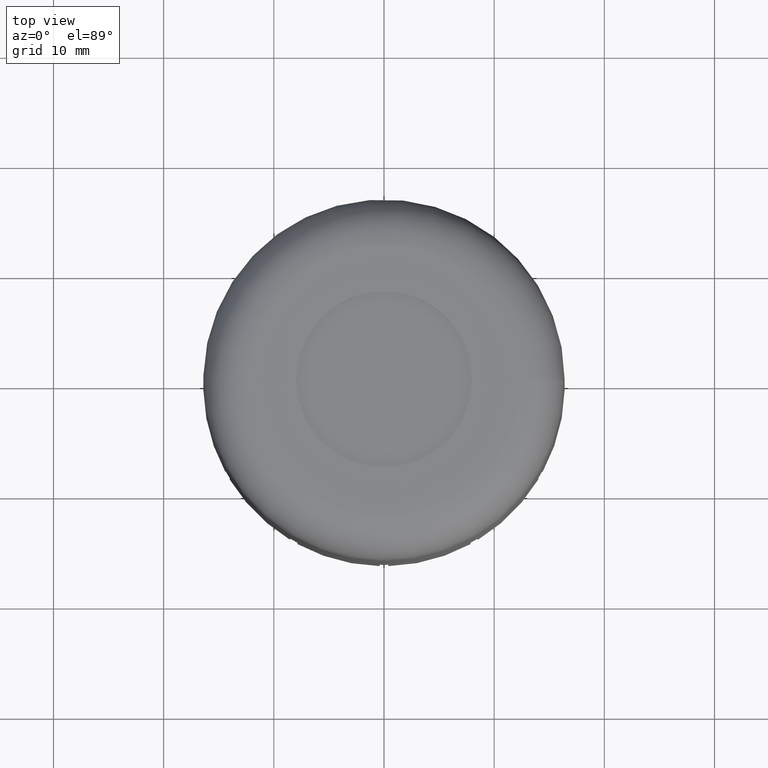
[diagram: clean part render]
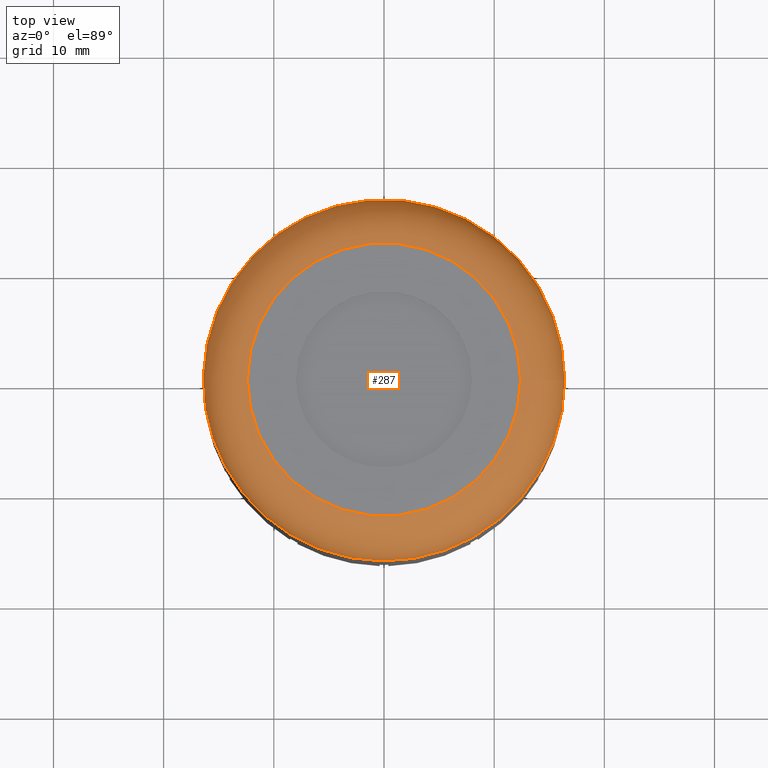
[diagram: same view with one face highlighted and labeled with its STEP entity id]
A machine part, top view. The second image highlights one B-rep face of the part: STEP entity #287.
In plain terms, the highlighted toroidal blend (fillet) surface has major radius 12.4 mm and minor (blend) radius 4 mm.
Its self-contained STEP definition (entity closure, byte-faithful):
#44=TOROIDAL_SURFACE('',#3879,12.4,4.);
#60=FACE_BOUND('',#700,.T.);
#61=FACE_BOUND('',#701,.T.);
#287=ADVANCED_FACE('',(#60,#61),#44,.T.);
#700=EDGE_LOOP('',(#1424));
#701=EDGE_LOOP('',(#1425));
#866=CIRCLE('',#3732,16.4);
#951=CIRCLE('',#3878,12.4);
#1424=ORIENTED_EDGE('',*,*,#2572,.F.);
#1425=ORIENTED_EDGE('',*,*,#2801,.T.);
#2221=VERTEX_POINT('',#5400);
#2390=VERTEX_POINT('',#5859);
#2572=EDGE_CURVE('',#2221,#2221,#866,.T.);
#2801=EDGE_CURVE('',#2390,#2390,#951,.T.);
#3732=AXIS2_PLACEMENT_3D('',#5399,#4254,#4255);
#3878=AXIS2_PLACEMENT_3D('',#5858,#4690,#4691);
#3879=AXIS2_PLACEMENT_3D('',#5860,#4692,#4693);
#4254=DIRECTION('',(0.,0.,-1.));
#4255=DIRECTION('',(1.,0.,0.));
#4690=DIRECTION('',(0.,0.,-1.));
#4691=DIRECTION('',(1.,0.,0.));
#4692=DIRECTION('',(0.,0.,-1.));
#4693=DIRECTION('',(-1.,0.,0.));
#5399=CARTESIAN_POINT('',(9.86076131526265E-032,0.,42.));
#5400=CARTESIAN_POINT('',(16.4,0.,42.));
#5858=CARTESIAN_POINT('',(9.86076131526265E-032,0.,46.));
#5859=CARTESIAN_POINT('',(12.4,0.,46.));
#5860=CARTESIAN_POINT('',(9.86076131526265E-032,0.,42.));